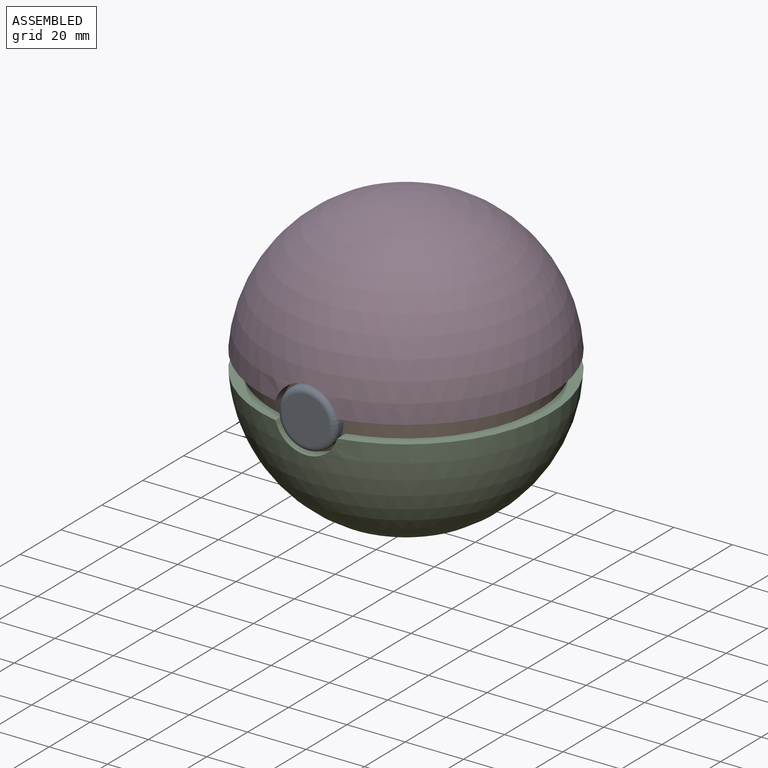
[diagram: assembled view]
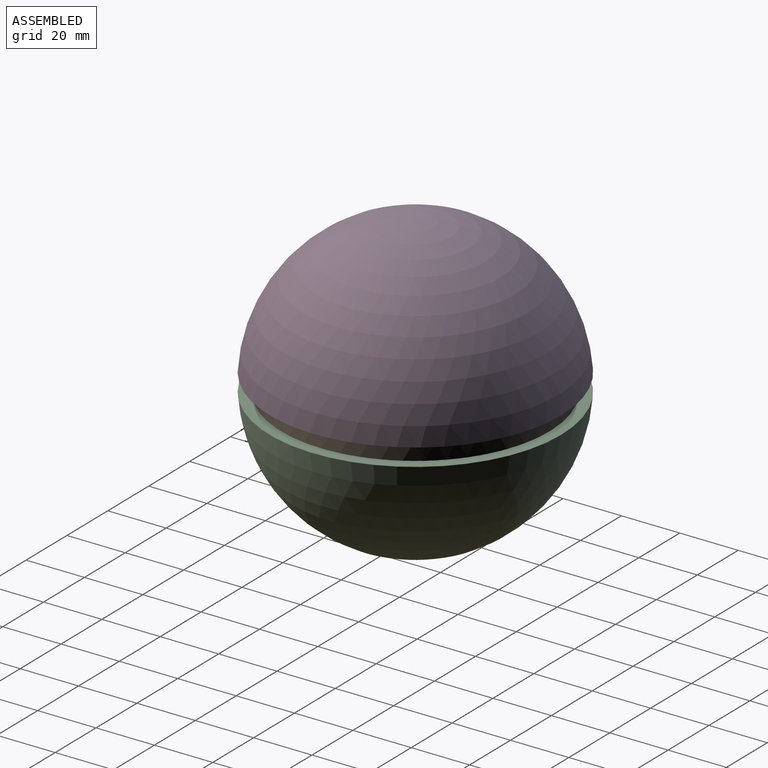
[diagram: assembled view, second angle]
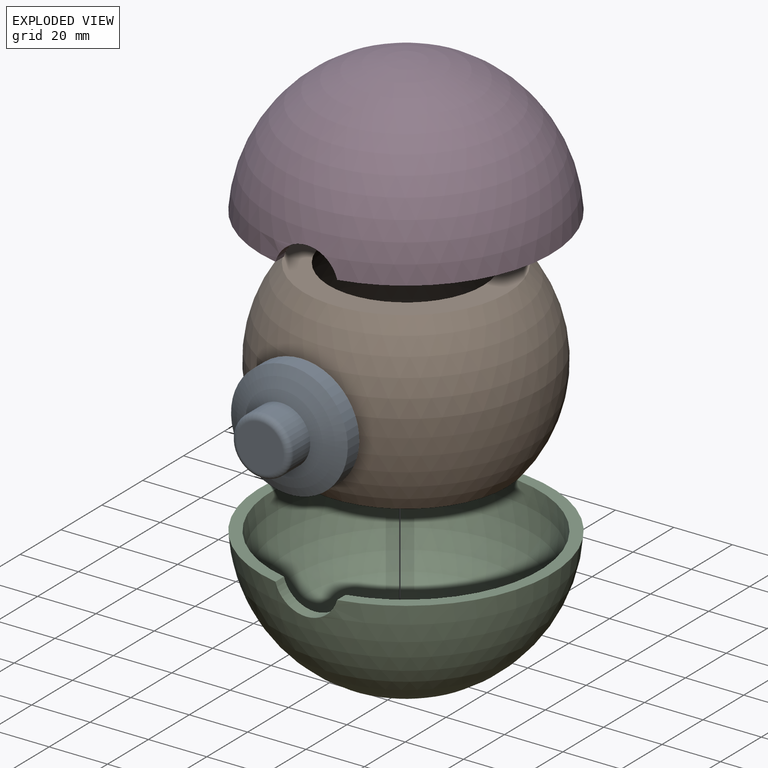
[diagram: exploded view]
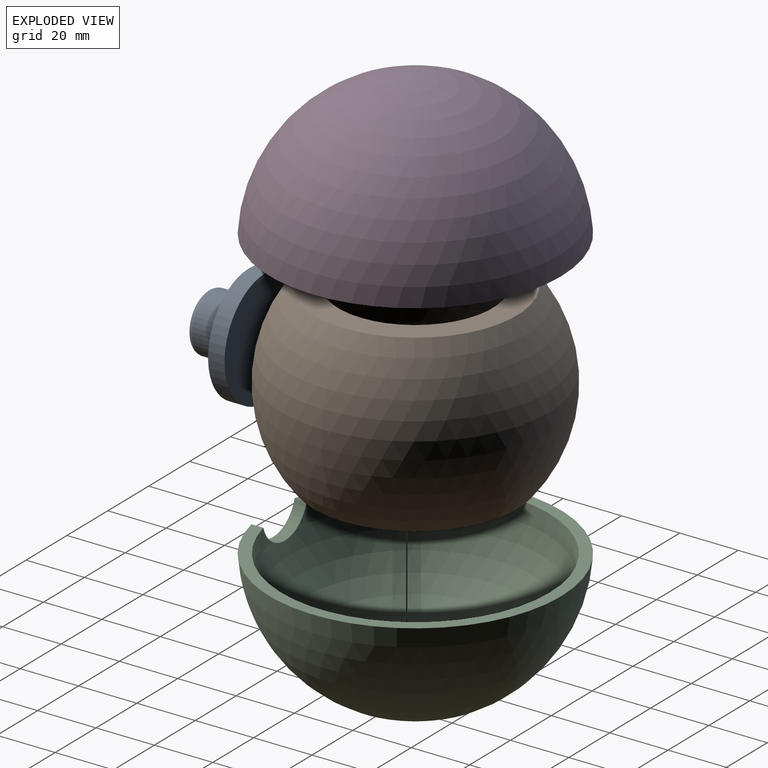
[diagram: exploded view, second angle]
ASSEMBLY  parts=4 mates=5
PART A: 6 faces, bbox 20x40x40 mm
  f0: cylinder r=10mm len=20mm, axis (1,0,0), area 517.6mm2, adj f4,f5
  f1: plane 15.94x15.94mm, normal (-1,0,0), area 199.5mm2, adj f5
  f2: plane 40x40mm, normal (1,0,0), area 1256.6mm2, adj f3
  f3: cylinder r=20mm len=40mm, axis (1,0,0), area 709mm2, adj f2,f4
  f4: sphere r=40mm, area 1027.6mm2, adj f0,f3
  f5: torus R=7.97mm, axis (1,0,0), area 185.7mm2, adj f0,f1
PART B: 5 faces, bbox 92x92x60 mm
  f0: sphere r=40mm, area 14760.4mm2, adj f2,f3,f4
  f1: sphere r=46mm, area 17023.6mm2, adj f2,f3,f4
  f2: plane 69.74x69.74mm, normal (0,0,-1), area 1621.1mm2, adj f0,f1
  f3: plane 69.74x69.74mm, normal (0,0,1), area 1621.1mm2, adj f0,f1
  f4: cylinder r=10mm len=20mm, axis (0,-1,0), area 387.7mm2, adj f0,f1
PART C: 4 faces, bbox 99.8x99.8x47 mm
  f0: sphere r=46mm, area 12301.1mm2, adj f2,f3
  f1: sphere r=50mm, area 14638.8mm2, adj f2,f3
  f2: plane 99.82x98.69mm, normal (0,0,-1), area 1120.8mm2, adj f0,f1,f3
  f3: cylinder r=11mm len=21.17mm, axis (0,-1,0), area 117mm2, adj f0,f1,f2
PART D: same geometry as C
PLACE A rot(axis=(0.71,0.71,0),180deg) t=(220.71,67.94,-37.58)mm
PLACE B rot(axis=(-1,0,0),180deg) t=(220.71,67.93,-37.58)mm
PLACE C rot(axis=(1,0,0),180deg) t=(220.71,67.93,-37.58)mm
PLACE D rot(axis=(0,0,1),180deg) t=(220.71,67.93,-37.58)mm
MATE revolute B.f4 <-> A.f0  axis (0,1,0) through (220.71,29.2,-37.58)mm
MATE parallel B.f0 <-> C.f0  axis (0,0,-1) through (220.71,67.93,-37.58)mm
MATE fastened C.f0 <-> B.f0  axis (0,0,-1) through (220.71,67.93,-37.58)mm
MATE parallel B.f0 <-> D.f2  axis (0,0,-1) through (220.71,67.93,-37.58)mm
MATE fastened D.f0 <-> B.f0  axis (0,0,1) through (220.71,67.93,-37.58)mm
